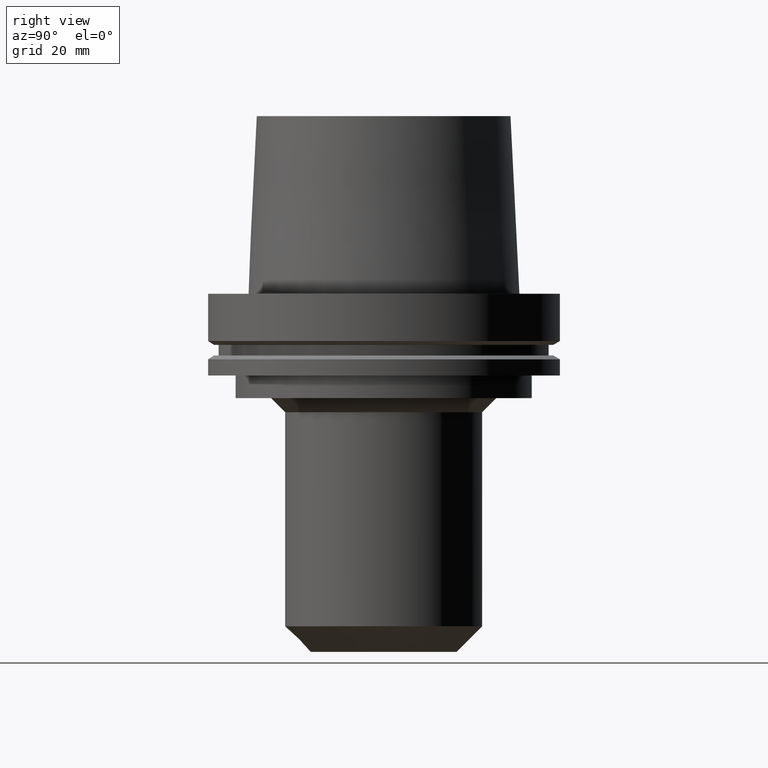
[diagram: clean part render]
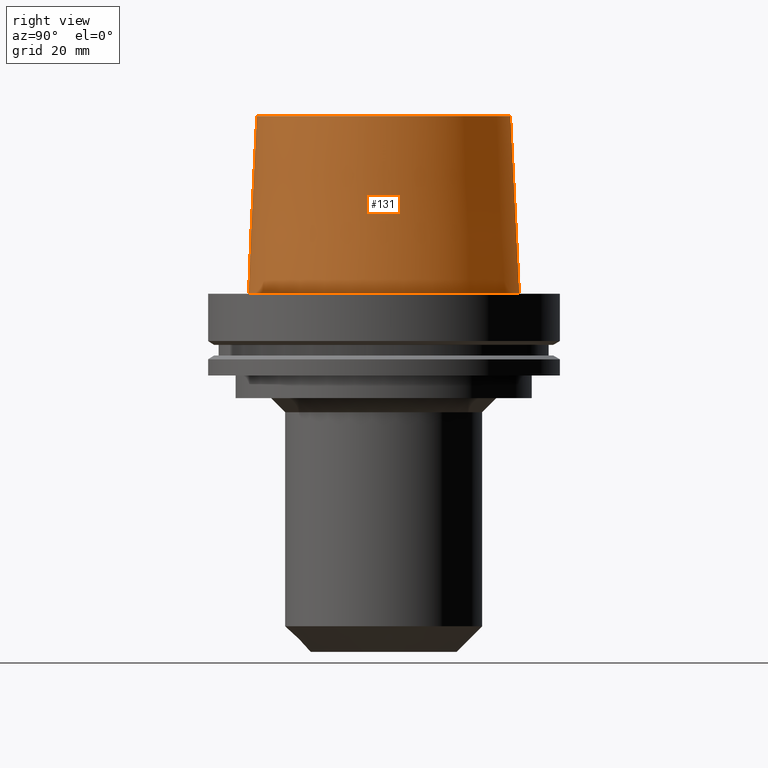
[diagram: same view with one face highlighted and labeled with its STEP entity id]
A machine part, right view. The second image highlights one B-rep face of the part: STEP entity #131.
In plain terms, the highlighted conical surface has half-angle 2.868 deg.
Its self-contained STEP definition (entity closure, byte-faithful):
#77=EDGE_CURVE('Unnamed[1]',#191,#191,#192,.T.);
#87=EDGE_CURVE('Unnamed[1]',#207,#207,#208,.T.);
#131=ADVANCED_FACE('Unnamed[1]',(#273,#274),#275,.T.);
#191=VERTEX_POINT('',#339);
#192=CIRCLE('',#340,44.9779398797591);
#207=VERTEX_POINT('',#359);
#208=CIRCLE('',#360,48.1342525050097);
#273=FACE_BOUND('',#441,.T.);
#274=FACE_BOUND('',#442,.T.);
#275=CONICAL_SURFACE('',#443,46.5560961923844,0.0500583457465964);
#339=CARTESIAN_POINT('',(-3.85763741731416E-015,44.9779398797591,62.9999999999999));
#340=AXIS2_PLACEMENT_3D('',#503,#504,#505);
#359=CARTESIAN_POINT('',(3.88342032297484E-029,48.1342525050097,-6.38005254174039E-013));
#360=AXIS2_PLACEMENT_3D('',#521,#522,#523);
#441=EDGE_LOOP('',(#593));
#442=EDGE_LOOP('',(#594));
#443=AXIS2_PLACEMENT_3D('',#595,#596,#597);
#503=CARTESIAN_POINT('',(-3.85763741731416E-015,-7.71527483462831E-015,62.9999999999999));
#504=DIRECTION('',(6.12323399573677E-017,1.22464679914735E-016,-1.0));
#505=DIRECTION('',(-1.23259516440783E-032,1.0,1.22464679914735E-016));
#521=CARTESIAN_POINT('',(3.91573749152705E-029,7.83147498305409E-029,-6.3948846218409E-013));
#522=DIRECTION('',(6.12323399573677E-017,1.22464679914735E-016,-1.0));
#523=DIRECTION('',(-1.23259516440783E-032,1.0,1.22464679914735E-016));
#593=ORIENTED_EDGE('',*,*,#87,.F.);
#594=ORIENTED_EDGE('',*,*,#77,.T.);
#595=CARTESIAN_POINT('',(-1.92881870865706E-015,-3.85763741731411E-015,31.4999999999996));
#596=DIRECTION('',(6.12323399573676E-017,1.22464679914735E-016,-1.0));
#597=DIRECTION('',(-1.23259516440783E-032,1.0,1.22464679914735E-016));